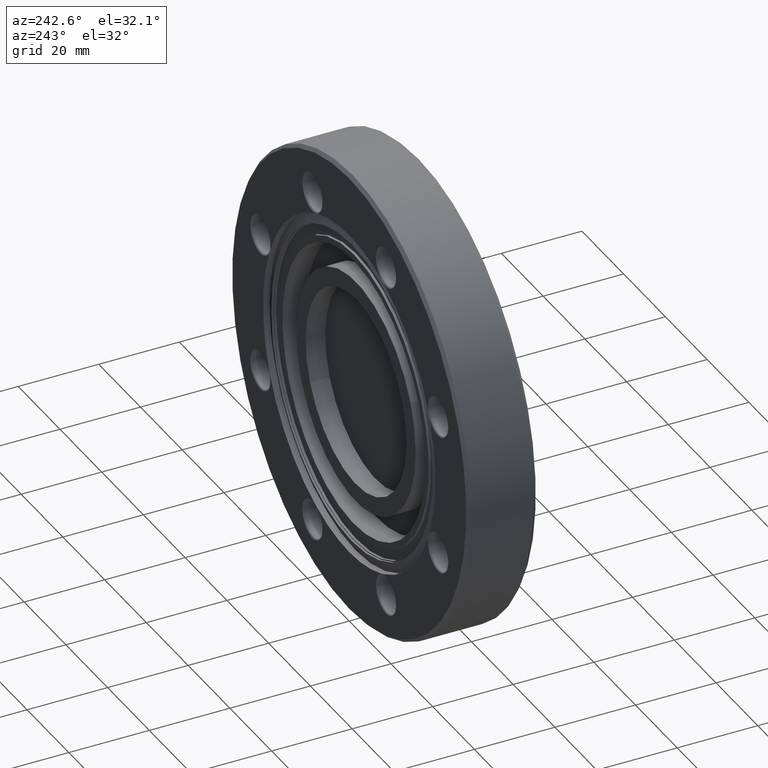
[diagram: clean part render]
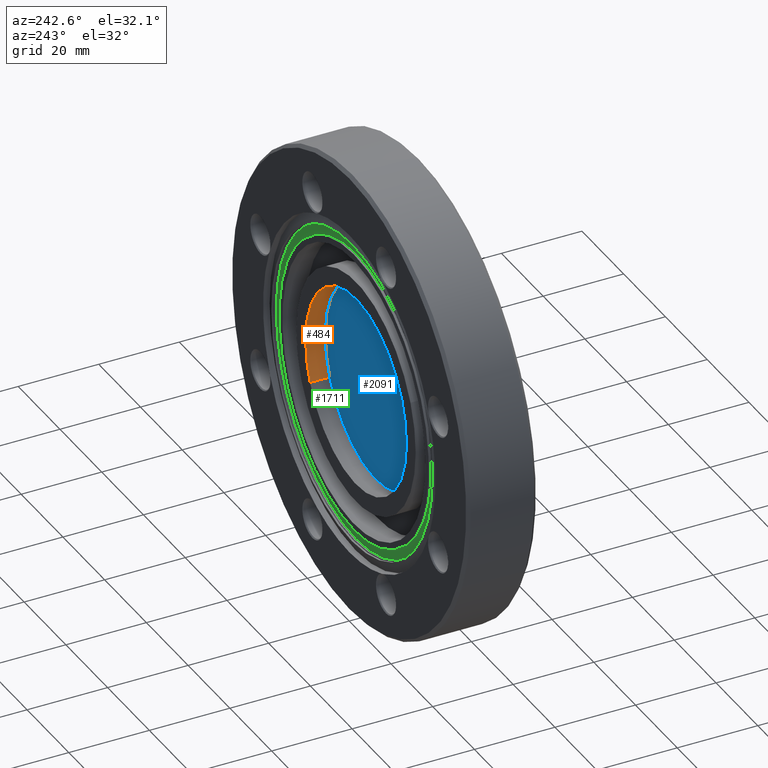
[diagram: same view with three faces highlighted in distinct colors, each labeled with its STEP entity id]
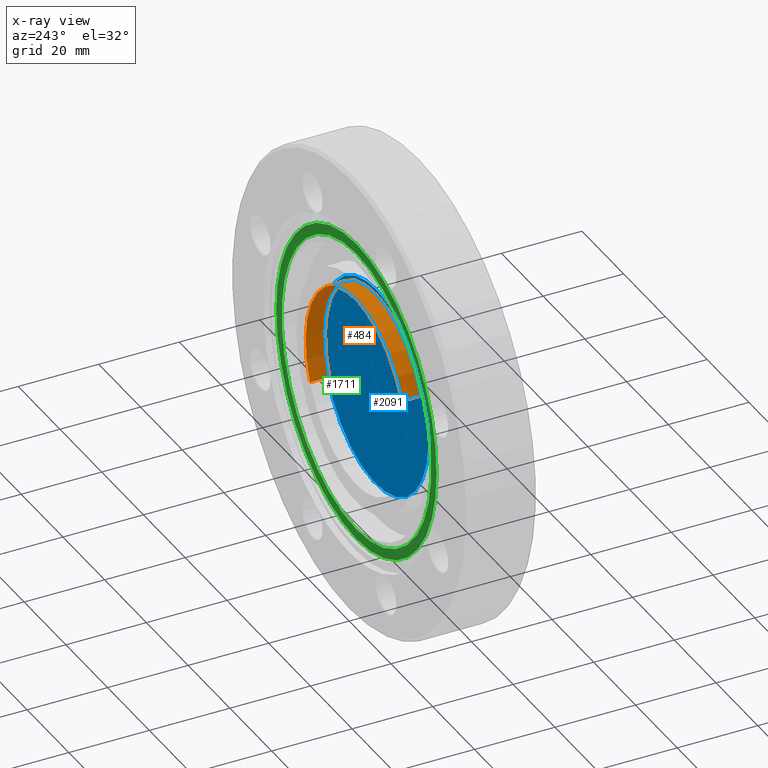
[diagram: x-ray of the same camera — body ghosted, the three highlighted faces saturated]
A machine part, auxiliary view with three faces highlighted in distinct colors.
The next image is the same camera in x-ray (body ghosted, the three faces saturated) — at least one of them is partly hidden behind the body in this view.
Their STEP definitions:

[orange] entity #484 — the highlighted cylindrical surface (partial cylindrical patch) has radius 24.13 mm, axis along (-0, -1, 0).
#117 = LINE ( 'NONE', #2411, #1520 ) ;
#185 = CARTESIAN_POINT ( 'NONE',  ( -0.8672953706128695428, -0.3763908831590853654, 0.3876838146137720487 ) ) ;
#241 = VECTOR ( 'NONE', #2773, 39.37007874015748143 ) ;
#388 = EDGE_LOOP ( 'NONE', ( #1162, #2002, #1730, #1040 ) ) ;
#401 = VERTEX_POINT ( 'NONE', #2353 ) ;
#484 = ADVANCED_FACE ( 'NONE', ( #2545 ), #2753, .F. ) ;
#641 = AXIS2_PLACEMENT_3D ( 'NONE', #2160, #1950, #2420 ) ;
#671 = AXIS2_PLACEMENT_3D ( 'NONE', #1397, #674, #2522 ) ;
#674 = DIRECTION ( 'NONE',  ( -2.517562127285965093E-17, -1.000000000000000000, 5.577538848355559359E-17 ) ) ;
#767 = DIRECTION ( 'NONE',  ( -0.9129424953819678112, 4.493171042210958268E-17, 0.4080882259092336595 ) ) ;
#796 = VERTEX_POINT ( 'NONE', #1229 ) ;
#985 = AXIS2_PLACEMENT_3D ( 'NONE', #1255, #1457, #767 ) ;
#1032 = CIRCLE ( 'NONE', #641, 0.9500000000000001776 ) ;
#1040 = ORIENTED_EDGE ( 'NONE', *, *, #1226, .F. ) ;
#1141 = CARTESIAN_POINT ( 'NONE',  ( -0.8672953706128695428, -0.2615000000000000102, 0.3876838146137720487 ) ) ;
#1146 = VERTEX_POINT ( 'NONE', #1141 ) ;
#1162 = ORIENTED_EDGE ( 'NONE', *, *, #2675, .F. ) ;
#1226 = EDGE_CURVE ( 'NONE', #1510, #1146, #2269, .T. ) ;
#1229 = CARTESIAN_POINT ( 'NONE',  ( 0.8672953706128693208, -0.06639088315908547866, -0.3876838146137719376 ) ) ;
#1255 = CARTESIAN_POINT ( 'NONE',  ( -1.108617739236970088E-19, -0.06639088315908543703, 7.495191946590812444E-19 ) ) ;
#1370 = CIRCLE ( 'NONE', #985, 0.9500000000000001776 ) ;
#1397 = CARTESIAN_POINT ( 'NONE',  ( -7.915304368510188239E-18, -0.3763908831590854209, 1.803988962456131598E-17 ) ) ;
#1457 = DIRECTION ( 'NONE',  ( -2.517562127285965093E-17, -1.000000000000000000, 5.577538848355559359E-17 ) ) ;
#1491 = DIRECTION ( 'NONE',  ( -2.517562127285965093E-17, -1.000000000000000000, 5.577538848355559359E-17 ) ) ;
#1510 = VERTEX_POINT ( 'NONE', #1686 ) ;
#1520 = VECTOR ( 'NONE', #1491, 39.37007874015748143 ) ;
#1686 = CARTESIAN_POINT ( 'NONE',  ( -0.8672953706128695428, -0.06639088315908539539, 0.3876838146137720487 ) ) ;
#1730 = ORIENTED_EDGE ( 'NONE', *, *, #2324, .T. ) ;
#1950 = DIRECTION ( 'NONE',  ( -2.517562127285965093E-17, -1.000000000000000000, 5.577538848355559359E-17 ) ) ;
#2002 = ORIENTED_EDGE ( 'NONE', *, *, #2494, .T. ) ;
#2160 = CARTESIAN_POINT ( 'NONE',  ( -5.022855006392686951E-18, -0.2615000000000000657, 1.163180598314453553E-17 ) ) ;
#2269 = LINE ( 'NONE', #185, #241 ) ;
#2324 = EDGE_CURVE ( 'NONE', #401, #1146, #1032, .T. ) ;
#2353 = CARTESIAN_POINT ( 'NONE',  ( 0.8672953706128693208, -0.2615000000000001212, -0.3876838146137719376 ) ) ;
#2411 = CARTESIAN_POINT ( 'NONE',  ( 0.8672953706128695428, -0.3763908831590854764, -0.3876838146137721042 ) ) ;
#2420 = DIRECTION ( 'NONE',  ( -0.9129424953819678112, 3.594536833768766614E-17, 0.4080882259092336595 ) ) ;
#2494 = EDGE_CURVE ( 'NONE', #796, #401, #117, .T. ) ;
#2522 = DIRECTION ( 'NONE',  ( -0.9129424953819678112, 7.189073667537533228E-17, 0.4080882259092336595 ) ) ;
#2545 = FACE_OUTER_BOUND ( 'NONE', #388, .T. ) ;
#2675 = EDGE_CURVE ( 'NONE', #796, #1510, #1370, .T. ) ;
#2753 = CYLINDRICAL_SURFACE ( 'NONE', #671, 0.9500000000000001776 ) ;
#2773 = DIRECTION ( 'NONE',  ( -2.517562127285965093E-17, -1.000000000000000000, 5.577538848355559359E-17 ) ) ;

[blue] entity #2091 — the highlighted planar face has unit normal (0, 1, -0).
#155 = DIRECTION ( 'NONE',  ( -2.517562128127537930E-17, -1.000000000000000000, 5.577538846473673737E-17 ) ) ;
#178 = CIRCLE ( 'NONE', #2652, 0.9979999999999999982 ) ;
#541 = EDGE_CURVE ( 'NONE', #744, #2995, #178, .T. ) ;
#546 = EDGE_CURVE ( 'NONE', #2995, #744, #1304, .T. ) ;
#603 = DIRECTION ( 'NONE',  ( -0.8120756125675893111, 6.843306597355369191E-17, 0.5835522251461084942 ) ) ;
#652 = FACE_OUTER_BOUND ( 'NONE', #815, .T. ) ;
#703 = CARTESIAN_POINT ( 'NONE',  ( 0.8104514613424540492, -0.2584999999999999520, -0.5823851206958163829 ) ) ;
#724 = AXIS2_PLACEMENT_3D ( 'NONE', #1085, #155, #845 ) ;
#744 = VERTEX_POINT ( 'NONE', #2541 ) ;
#815 = EDGE_LOOP ( 'NONE', ( #1357, #2607 ) ) ;
#845 = DIRECTION ( 'NONE',  ( -0.8120756125675893111, 6.843306597355369191E-17, 0.5835522251461084942 ) ) ;
#913 = CARTESIAN_POINT ( 'NONE',  ( -0.5823851206958162718, -0.2585000000000000075, -0.8104514613424541603 ) ) ;
#1085 = CARTESIAN_POINT ( 'NONE',  ( -4.947328139052121242E-18, -0.2584999999999998965, 1.146447982556955403E-17 ) ) ;
#1304 = CIRCLE ( 'NONE', #724, 0.9979999999999999982 ) ;
#1357 = ORIENTED_EDGE ( 'NONE', *, *, #541, .F. ) ;
#1545 = CARTESIAN_POINT ( 'NONE',  ( -4.947328139052121242E-18, -0.2584999999999998965, 1.146447982556955403E-17 ) ) ;
#1571 = DIRECTION ( 'NONE',  ( 2.517562128127537314E-17, 1.000000000000000000, -5.577538846473673737E-17 ) ) ;
#1577 = DIRECTION ( 'NONE',  ( -2.517562128127537930E-17, -1.000000000000000000, 5.577538846473673737E-17 ) ) ;
#1585 = PLANE ( 'NONE',  #2724 ) ;
#2091 = ADVANCED_FACE ( 'NONE', ( #652 ), #1585, .T. ) ;
#2499 = DIRECTION ( 'NONE',  ( 0.8120756125675894221, -5.299236012074704950E-17, -0.5835522251461084942 ) ) ;
#2541 = CARTESIAN_POINT ( 'NONE',  ( -0.8104514613424541603, -0.2584999999999998410, 0.5823851206958162718 ) ) ;
#2607 = ORIENTED_EDGE ( 'NONE', *, *, #546, .F. ) ;
#2652 = AXIS2_PLACEMENT_3D ( 'NONE', #1545, #1577, #603 ) ;
#2724 = AXIS2_PLACEMENT_3D ( 'NONE', #913, #1571, #2499 ) ;
#2995 = VERTEX_POINT ( 'NONE', #703 ) ;

[green] entity #1711 — the highlighted planar face has unit normal (-0, 1, 0).
#19 = DIRECTION ( 'NONE',  ( -0.000000000000000000, 1.000000000000000000, -0.000000000000000000 ) ) ;
#88 = CARTESIAN_POINT ( 'NONE',  ( 1.851053636911224650E-16, -0.07099999999999984102, -1.511500000000000288 ) ) ;
#99 = CIRCLE ( 'NONE', #1853, 1.511500000000000288 ) ;
#159 = EDGE_LOOP ( 'NONE', ( #429, #1440 ) ) ;
#228 = DIRECTION ( 'NONE',  ( 0.000000000000000000, 0.000000000000000000, 1.000000000000000000 ) ) ;
#360 = CARTESIAN_POINT ( 'NONE',  ( 0.000000000000000000, -0.07100000000000000755, 1.411500000000000199 ) ) ;
#368 = CARTESIAN_POINT ( 'NONE',  ( 1.728588956996489354E-16, -0.07100000000000000755, -1.411500000000000199 ) ) ;
#415 = EDGE_CURVE ( 'NONE', #2492, #922, #2207, .T. ) ;
#429 = ORIENTED_EDGE ( 'NONE', *, *, #415, .F. ) ;
#462 = DIRECTION ( 'NONE',  ( -0.000000000000000000, 1.000000000000000000, -0.000000000000000000 ) ) ;
#472 = ORIENTED_EDGE ( 'NONE', *, *, #1200, .T. ) ;
#905 = CARTESIAN_POINT ( 'NONE',  ( -1.511500000000000288, -0.07099999999999992428, 0.000000000000000000 ) ) ;
#918 = FACE_BOUND ( 'NONE', #159, .T. ) ;
#922 = VERTEX_POINT ( 'NONE', #368 ) ;
#932 = CARTESIAN_POINT ( 'NONE',  ( 0.000000000000000000, -0.07099999999999984102, 0.000000000000000000 ) ) ;
#1041 = DIRECTION ( 'NONE',  ( 0.000000000000000000, 0.000000000000000000, 1.000000000000000000 ) ) ;
#1053 = AXIS2_PLACEMENT_3D ( 'NONE', #1704, #19, #228 ) ;
#1070 = CIRCLE ( 'NONE', #2081, 1.511500000000000288 ) ;
#1200 = EDGE_CURVE ( 'NONE', #2781, #2481, #1070, .T. ) ;
#1238 = AXIS2_PLACEMENT_3D ( 'NONE', #1503, #2181, #1041 ) ;
#1440 = ORIENTED_EDGE ( 'NONE', *, *, #2563, .F. ) ;
#1503 = CARTESIAN_POINT ( 'NONE',  ( 0.000000000000000000, -0.07100000000000000755, 0.000000000000000000 ) ) ;
#1516 = CARTESIAN_POINT ( 'NONE',  ( 0.000000000000000000, -0.07099999999999984102, 1.511500000000000288 ) ) ;
#1690 = EDGE_LOOP ( 'NONE', ( #2677, #472 ) ) ;
#1704 = CARTESIAN_POINT ( 'NONE',  ( 0.000000000000000000, -0.07100000000000000755, 0.000000000000000000 ) ) ;
#1711 = ADVANCED_FACE ( 'NONE', ( #1990, #918 ), #2735, .T. ) ;
#1746 = EDGE_CURVE ( 'NONE', #2481, #2781, #99, .T. ) ;
#1853 = AXIS2_PLACEMENT_3D ( 'NONE', #932, #462, #2782 ) ;
#1990 = FACE_OUTER_BOUND ( 'NONE', #1690, .T. ) ;
#2081 = AXIS2_PLACEMENT_3D ( 'NONE', #2313, #2739, #2495 ) ;
#2181 = DIRECTION ( 'NONE',  ( -0.000000000000000000, 1.000000000000000000, -0.000000000000000000 ) ) ;
#2207 = CIRCLE ( 'NONE', #1053, 1.411500000000000199 ) ;
#2238 = AXIS2_PLACEMENT_3D ( 'NONE', #905, #2501, #2981 ) ;
#2313 = CARTESIAN_POINT ( 'NONE',  ( 0.000000000000000000, -0.07099999999999984102, 0.000000000000000000 ) ) ;
#2481 = VERTEX_POINT ( 'NONE', #1516 ) ;
#2492 = VERTEX_POINT ( 'NONE', #360 ) ;
#2495 = DIRECTION ( 'NONE',  ( 0.000000000000000000, 0.000000000000000000, 1.000000000000000000 ) ) ;
#2501 = DIRECTION ( 'NONE',  ( -0.000000000000000000, 1.000000000000000000, 0.000000000000000000 ) ) ;
#2563 = EDGE_CURVE ( 'NONE', #922, #2492, #2777, .T. ) ;
#2677 = ORIENTED_EDGE ( 'NONE', *, *, #1746, .T. ) ;
#2735 = PLANE ( 'NONE',  #2238 ) ;
#2739 = DIRECTION ( 'NONE',  ( -0.000000000000000000, 1.000000000000000000, -0.000000000000000000 ) ) ;
#2777 = CIRCLE ( 'NONE', #1238, 1.411500000000000199 ) ;
#2781 = VERTEX_POINT ( 'NONE', #88 ) ;
#2782 = DIRECTION ( 'NONE',  ( 0.000000000000000000, 0.000000000000000000, 1.000000000000000000 ) ) ;
#2981 = DIRECTION ( 'NONE',  ( 0.000000000000000000, 0.000000000000000000, 1.000000000000000000 ) ) ;